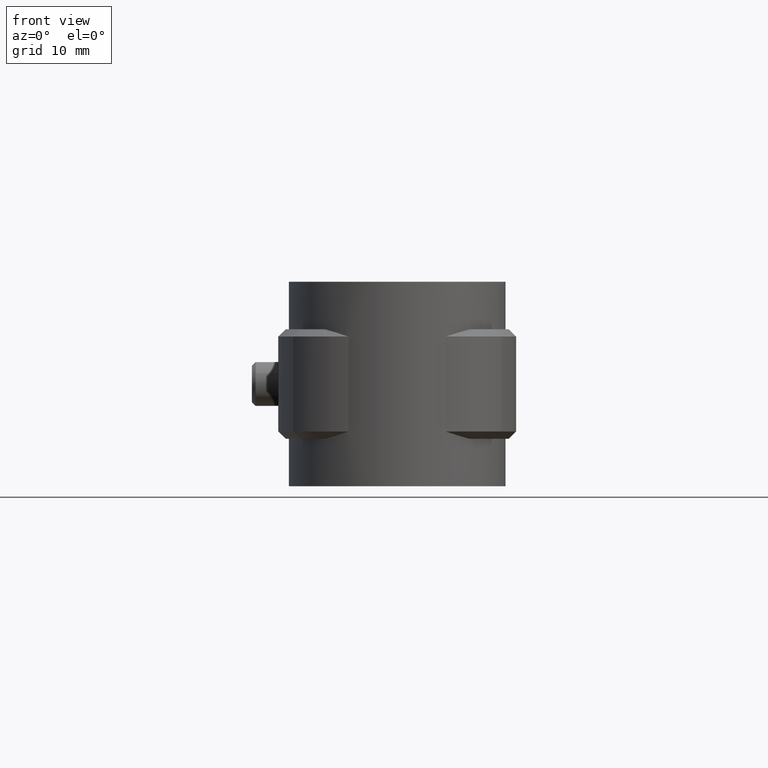
[diagram: clean part render]
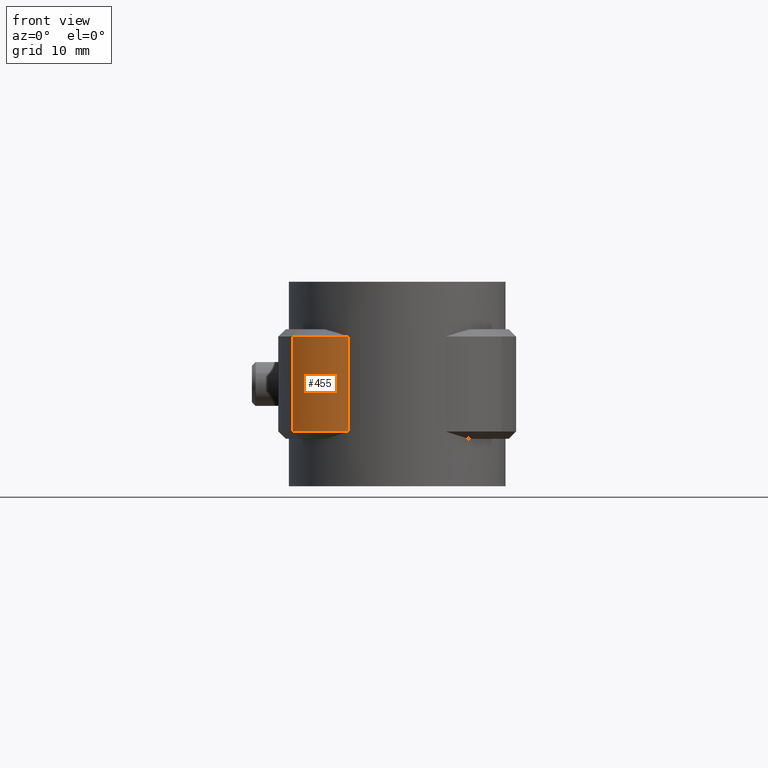
[diagram: same view with one face highlighted and labeled with its STEP entity id]
A machine part, front view. The second image highlights one B-rep face of the part: STEP entity #455.
In plain terms, the highlighted cylindrical surface (partial cylindrical patch) has radius 10.6 mm, axis along (0, 0, -1).
Its self-contained STEP definition (entity closure, byte-faithful):
#455 = ADVANCED_FACE( '', ( #880 ), #881, .T. );
#880 = FACE_OUTER_BOUND( '', #1961, .T. );
#881 = CYLINDRICAL_SURFACE( '', #1962, 10.6000000000000 );
#1961 = EDGE_LOOP( '', ( #4355, #4356, #4357, #4358 ) );
#1962 = AXIS2_PLACEMENT_3D( '', #4359, #4360, #4361 );
#4355 = ORIENTED_EDGE( '', *, *, #6600, .F. );
#4356 = ORIENTED_EDGE( '', *, *, #6601, .T. );
#4357 = ORIENTED_EDGE( '', *, *, #6576, .F. );
#4358 = ORIENTED_EDGE( '', *, *, #6602, .T. );
#4359 = CARTESIAN_POINT( '', ( -5.01647535626359, -2.80000000000000, -20.0000000000000 ) );
#4360 = DIRECTION( '', ( 0.000000000000000, 0.000000000000000, -1.00000000000000 ) );
#4361 = DIRECTION( '', ( -0.312022025084123, 0.950074868556369, 0.000000000000000 ) );
#6576 = EDGE_CURVE( '', #7691, #7693, #7694, .F. );
#6600 = EDGE_CURVE( '', #7729, #7730, #7731, .T. );
#6601 = EDGE_CURVE( '', #7729, #7693, #7732, .T. );
#6602 = EDGE_CURVE( '', #7691, #7730, #7733, .F. );
#7691 = VERTEX_POINT( '', #10674 );
#7693 = VERTEX_POINT( '', #10679 );
#7694 = LINE( '', #10680, #10681 );
#7729 = VERTEX_POINT( '', #10732 );
#7730 = VERTEX_POINT( '', #10733 );
#7731 = LINE( '', #10734, #10735 );
#7732 = CIRCLE( '', #10736, 10.6000000000000 );
#7733 = CIRCLE( '', #10737, 10.6000000000000 );
#10674 = CARTESIAN_POINT( '', ( -6.64661852739555, -13.2739024838697, -6.00000000000000 ) );
#10679 = CARTESIAN_POINT( '', ( -6.64661852739555, -13.2739024838697, -19.0000000000000 ) );
#10680 = CARTESIAN_POINT( '', ( -6.64661852739555, -13.2739024838697, -12.5000000000000 ) );
#10681 = VECTOR( '', #12576, 1000.00000000000 );
#10732 = CARTESIAN_POINT( '', ( -14.2722871537212, -7.96623150565710, -19.0000000000000 ) );
#10733 = CARTESIAN_POINT( '', ( -14.2722871537212, -7.96623150565710, -6.00000000000000 ) );
#10734 = CARTESIAN_POINT( '', ( -14.2722871537212, -7.96623150565710, -20.0000000000000 ) );
#10735 = VECTOR( '', #12623, 1000.00000000000 );
#10736 = AXIS2_PLACEMENT_3D( '', #12624, #12625, #12626 );
#10737 = AXIS2_PLACEMENT_3D( '', #12627, #12628, #12629 );
#12576 = DIRECTION( '', ( 0.000000000000000, 0.000000000000000, 1.00000000000000 ) );
#12623 = DIRECTION( '', ( 0.000000000000000, 0.000000000000000, 1.00000000000000 ) );
#12624 = CARTESIAN_POINT( '', ( -5.01647535626359, -2.80000000000000, -19.0000000000000 ) );
#12625 = DIRECTION( '', ( 0.000000000000000, 0.000000000000000, 1.00000000000000 ) );
#12626 = DIRECTION( '', ( 1.00000000000000, 0.000000000000000, 0.000000000000000 ) );
#12627 = CARTESIAN_POINT( '', ( -5.01647535626359, -2.80000000000000, -6.00000000000000 ) );
#12628 = DIRECTION( '', ( 0.000000000000000, 0.000000000000000, 1.00000000000000 ) );
#12629 = DIRECTION( '', ( 1.00000000000000, 0.000000000000000, 0.000000000000000 ) );